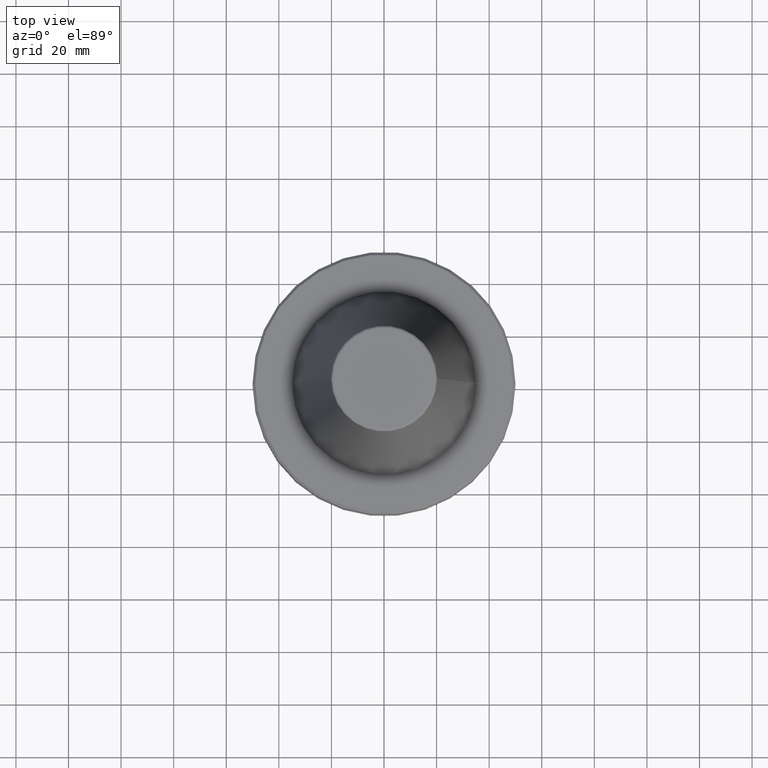
[diagram: clean part render]
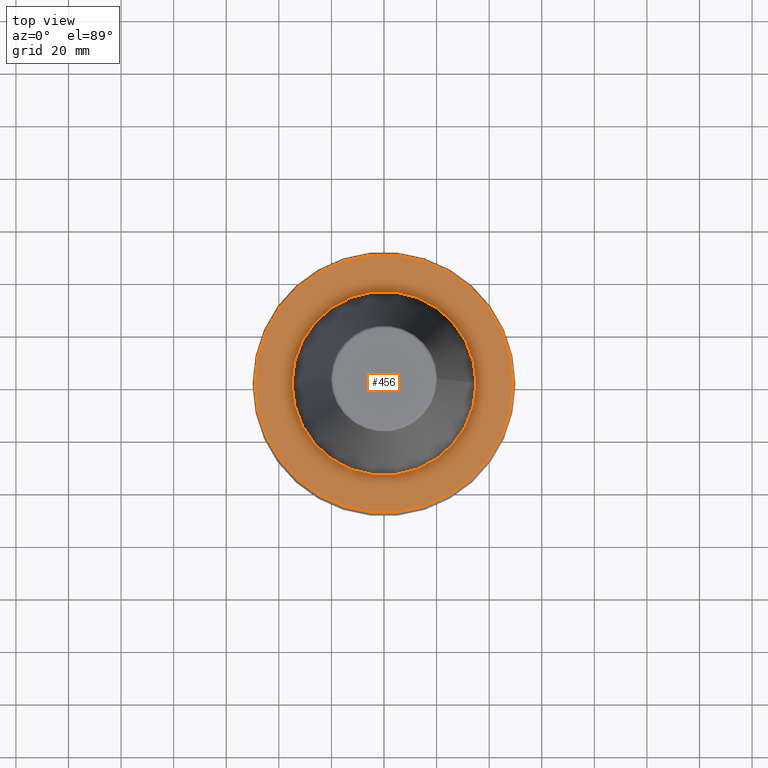
[diagram: same view with one face highlighted and labeled with its STEP entity id]
A machine part, top view. The second image highlights one B-rep face of the part: STEP entity #456.
In plain terms, the highlighted planar face has unit normal (0, 0, -1).
Its self-contained STEP definition (entity closure, byte-faithful):
#2 = FACE_BOUND ( 'NONE', #626, .T. ) ;
#36 = DIRECTION ( 'NONE',  ( 1.000000000000000000, 0.0000000000000000000, 0.0000000000000000000 ) ) ;
#49 = ORIENTED_EDGE ( 'NONE', *, *, #278, .F. ) ;
#120 = DIRECTION ( 'NONE',  ( 1.000000000000000000, 0.0000000000000000000, 0.0000000000000000000 ) ) ;
#135 = DIRECTION ( 'NONE',  ( 1.000000000000000000, 0.0000000000000000000, 0.0000000000000000000 ) ) ;
#149 = CARTESIAN_POINT ( 'NONE',  ( -35.00000000000000000, 4.286263797015737300E-015, -2.999999999999995600 ) ) ;
#206 = VERTEX_POINT ( 'NONE', #659 ) ;
#211 = ORIENTED_EDGE ( 'NONE', *, *, #418, .T. ) ;
#233 = DIRECTION ( 'NONE',  ( 0.0000000000000000000, 0.0000000000000000000, -1.000000000000000000 ) ) ;
#240 = FACE_OUTER_BOUND ( 'NONE', #657, .T. ) ;
#241 = CIRCLE ( 'NONE', #800, 35.00000000000000000 ) ;
#261 = CARTESIAN_POINT ( 'NONE',  ( 0.0000000000000000000, 35.00000000000000000, -3.000000000000002700 ) ) ;
#278 = EDGE_CURVE ( 'NONE', #696, #206, #241, .T. ) ;
#293 = DIRECTION ( 'NONE',  ( -0.0000000000000000000, -0.0000000000000000000, 1.000000000000000000 ) ) ;
#320 = CARTESIAN_POINT ( 'NONE',  ( 0.0000000000000000000, 0.0000000000000000000, -2.999999999999988900 ) ) ;
#385 = CARTESIAN_POINT ( 'NONE',  ( 49.00000000000000000, 6.062001655779398500E-015, -2.999999999999988900 ) ) ;
#401 = DIRECTION ( 'NONE',  ( 1.000000000000000000, 0.0000000000000000000, 0.0000000000000000000 ) ) ;
#418 = EDGE_CURVE ( 'NONE', #461, #614, #572, .T. ) ;
#435 = DIRECTION ( 'NONE',  ( -0.0000000000000000000, -0.0000000000000000000, 1.000000000000000000 ) ) ;
#456 = ADVANCED_FACE ( 'NONE', ( #2, #240 ), #945, .F. ) ;
#458 = EDGE_CURVE ( 'NONE', #206, #696, #641, .T. ) ;
#461 = VERTEX_POINT ( 'NONE', #791 ) ;
#505 = DIRECTION ( 'NONE',  ( -0.0000000000000000000, -0.0000000000000000000, 1.000000000000000000 ) ) ;
#572 = CIRCLE ( 'NONE', #655, 49.00000000000000000 ) ;
#608 = AXIS2_PLACEMENT_3D ( 'NONE', #649, #505, #36 ) ;
#614 = VERTEX_POINT ( 'NONE', #385 ) ;
#622 = AXIS2_PLACEMENT_3D ( 'NONE', #820, #293, #135 ) ;
#626 = EDGE_LOOP ( 'NONE', ( #628, #49 ) ) ;
#628 = ORIENTED_EDGE ( 'NONE', *, *, #458, .F. ) ;
#641 = CIRCLE ( 'NONE', #622, 35.00000000000000000 ) ;
#649 = CARTESIAN_POINT ( 'NONE',  ( 0.0000000000000000000, 0.0000000000000000000, -2.999999999999988900 ) ) ;
#655 = AXIS2_PLACEMENT_3D ( 'NONE', #320, #850, #401 ) ;
#657 = EDGE_LOOP ( 'NONE', ( #211, #703 ) ) ;
#659 = CARTESIAN_POINT ( 'NONE',  ( 35.00000000000000000, 0.0000000000000000000, -2.999999999999995600 ) ) ;
#696 = VERTEX_POINT ( 'NONE', #149 ) ;
#703 = ORIENTED_EDGE ( 'NONE', *, *, #935, .T. ) ;
#791 = CARTESIAN_POINT ( 'NONE',  ( -49.00000000000000000, 0.0000000000000000000, -2.999999999999988900 ) ) ;
#800 = AXIS2_PLACEMENT_3D ( 'NONE', #887, #435, #120 ) ;
#811 = AXIS2_PLACEMENT_3D ( 'NONE', #261, #233, #973 ) ;
#820 = CARTESIAN_POINT ( 'NONE',  ( 0.0000000000000000000, 0.0000000000000000000, -2.999999999999988900 ) ) ;
#850 = DIRECTION ( 'NONE',  ( -0.0000000000000000000, -0.0000000000000000000, 1.000000000000000000 ) ) ;
#853 = CIRCLE ( 'NONE', #608, 49.00000000000000000 ) ;
#887 = CARTESIAN_POINT ( 'NONE',  ( 0.0000000000000000000, 0.0000000000000000000, -2.999999999999988900 ) ) ;
#935 = EDGE_CURVE ( 'NONE', #614, #461, #853, .T. ) ;
#945 = PLANE ( 'NONE',  #811 ) ;
#973 = DIRECTION ( 'NONE',  ( -1.000000000000000000, 0.0000000000000000000, -0.0000000000000000000 ) ) ;